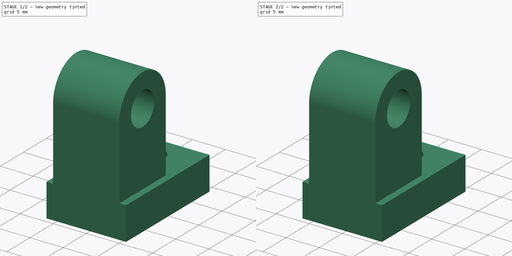
[diagram: build sequence overview — one tinted view per stage of 2, left to right]
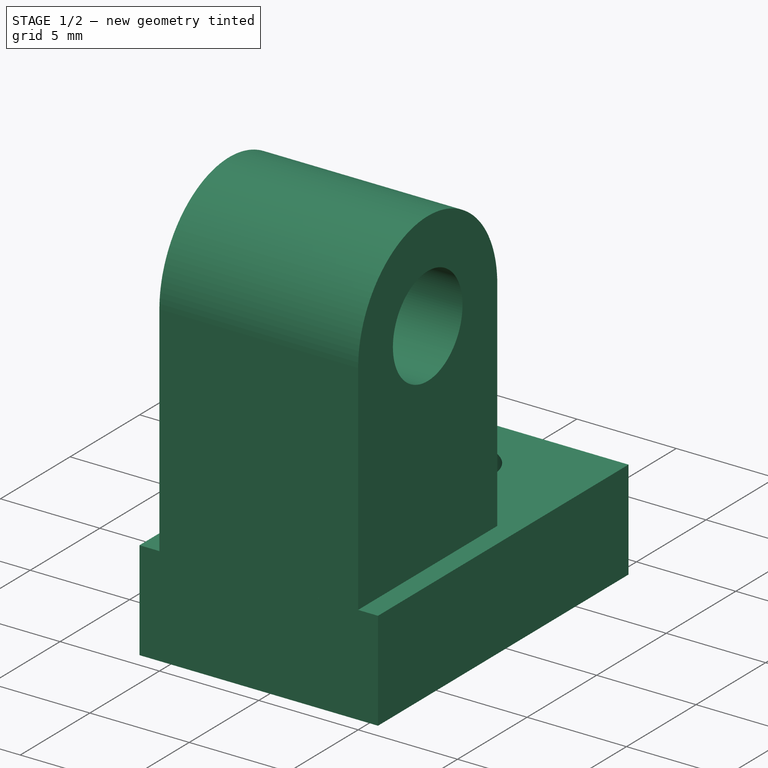
[diagram: stage 1 of 2 — iso view after this stage's code; geometry added in this stage tinted green]
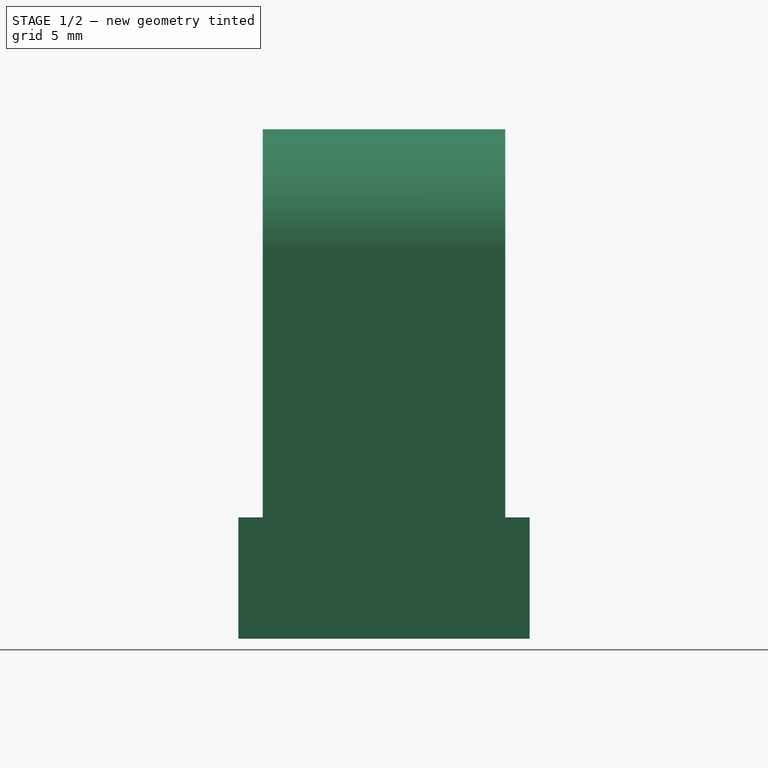
[diagram: stage 1 of 2 — front view after this stage's code; geometry added in this stage tinted green]
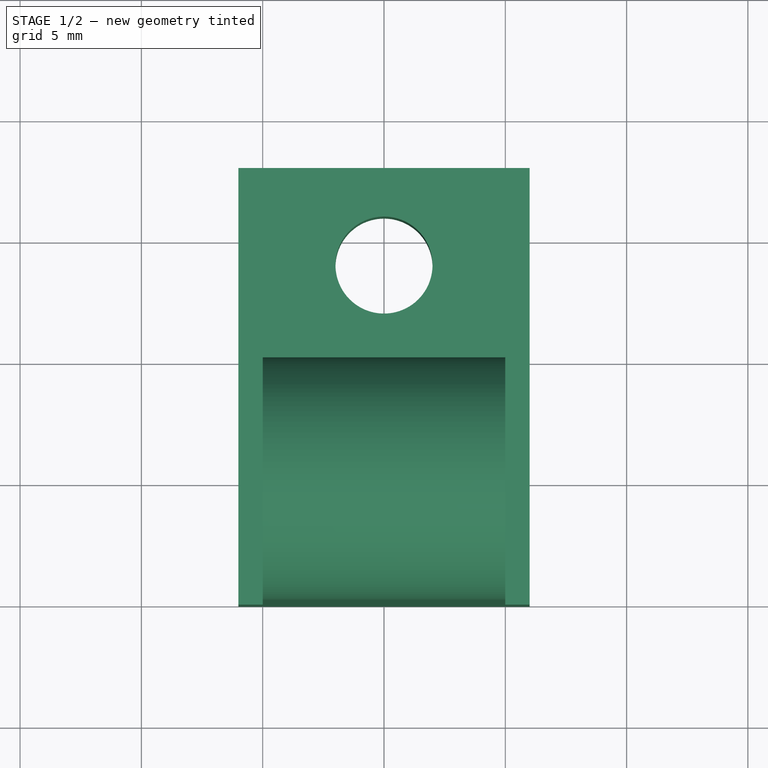
[diagram: stage 1 of 2 — top view after this stage's code; geometry added in this stage tinted green]
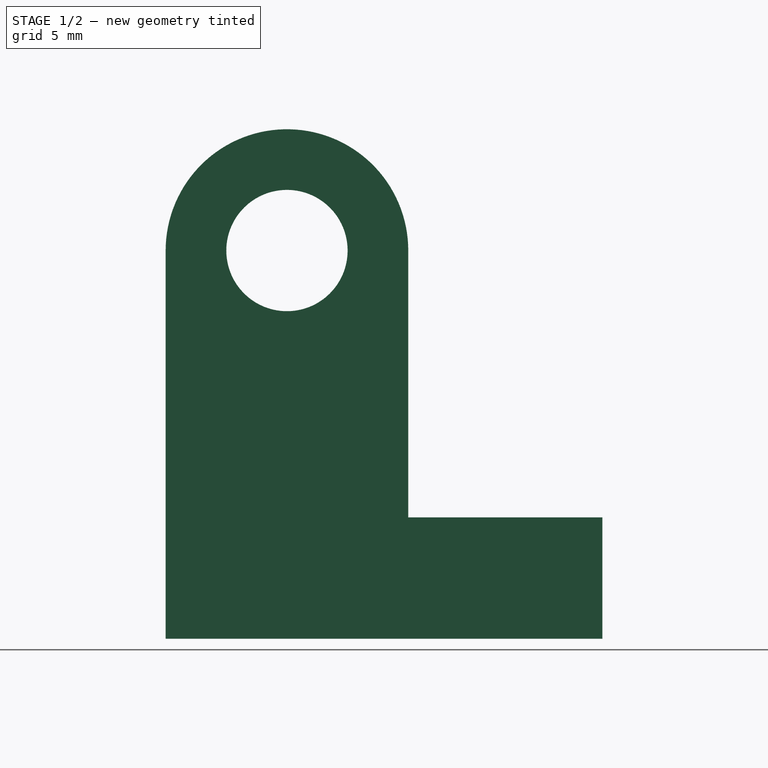
[diagram: stage 1 of 2 — right view after this stage's code; geometry added in this stage tinted green]
FCSTD DOCUMENT  (FreeCAD 0.16R)
Label: Halter
License: All rights reserved
LicenseURL: http://en.wikipedia.org/wiki/All_rights_reserved
objects: Sketcher::SketchObject×2, PartDesign::Pad×2, Part::MultiFuse×1
note: 7 computed .brp shape members not serialized (recipe doc carries the construction recipe); baked Part::Feature solids carry a one-line shape summary decoded from their .brp

FEATURE [Sketcher::SketchObject] Sketch
  sketch-geometry (5):
    g0: LineSegment StartX=-6 StartY=18 StartZ=0 EndX=6 EndY=18 EndZ=0
    g1: LineSegment StartX=6 StartY=18 StartZ=0 EndX=6 EndY=0 EndZ=0
    g2: LineSegment StartX=6 StartY=0 StartZ=0 EndX=-6 EndY=0 EndZ=0
    g3: LineSegment StartX=-6 StartY=0 StartZ=0 EndX=-6 EndY=18 EndZ=0
    g4: Circle CenterX=0 CenterY=14 CenterZ=0 NormalX=0 NormalY=0 NormalZ=1 Radius=2
  constraints (15):
    c: Coincident(g0,g1)
    c: Coincident(g1,g2)
    c: Coincident(g2,g3)
    c: Coincident(g3,g0)
    c: Horizontal(g0)
    c: Horizontal(g2)
    c: Vertical(g1)
    c: Vertical(g3)
    c: PointOnObject(g1,g-1)
    c: Symmetric(g2,g1,g-2)
    c: DistanceX(g2,g2) = 12
    c: DistanceY(g1,g1) = 18
    c: PointOnObject(g4,g-2)
    c: Radius(g4) = 2
    c: DistanceY(g4,g0) = 4
FEATURE [PartDesign::Pad] Pad
  Length = 5
  Length2 = 100
  Sketch = -> Sketch
  Type = 0
FEATURE [Sketcher::SketchObject] Sketch001
  Placement = pos=(0,0,0) rot=(0.57735,0.57735,0.57735;2.0944rad)
  sketch-geometry (6):
    g0: LineSegment StartX=0 StartY=0 StartZ=0 EndX=10 EndY=0 EndZ=0
    g1: LineSegment StartX=10 StartY=0 StartZ=0 EndX=10 EndY=16 EndZ=0
    g2: LineSegment [constr] StartX=10 StartY=16 StartZ=0 EndX=0 EndY=16 EndZ=0
    g3: LineSegment StartX=0 StartY=16 StartZ=0 EndX=0 EndY=0 EndZ=0
    g4: ArcOfCircle CenterX=5 CenterY=16 CenterZ=0 NormalX=0 NormalY=0 NormalZ=1 Radius=5 StartAngle=0 EndAngle=3.14159
    g5: Circle CenterX=5 CenterY=16 CenterZ=0 NormalX=0 NormalY=0 NormalZ=1 Radius=2.5
  constraints (16):
    c: Coincident(g0,g1)
    c: Coincident(g1,g2)
    c: Coincident(g2,g3)
    c: Coincident(g3,g0)
    c: Coincident(g0,g-1)
    c: Distance(g1,g0) = 16
    c: Equal(g2,g0)
    c: Perpendicular(g3,g2)
    c: Distance(g2) = 10
    c: Angle(g-1,g3) = 1.5708
    c: Equal(g3,g1)
    c: PointOnObject(g4,g2)
    c: Coincident(g4,g2)
    c: Coincident(g1,g4)
    c: Coincident(g5,g4)
    c: Radius(g5) = 2.5
FEATURE [PartDesign::Pad] Pad001
  Length = 10
  Length2 = 100
  Midplane = true
  Placement = pos=(0,0,0) rot=(0.57735,0.57735,0.57735;2.0944rad)
  Sketch = -> Sketch001
  Type = 0
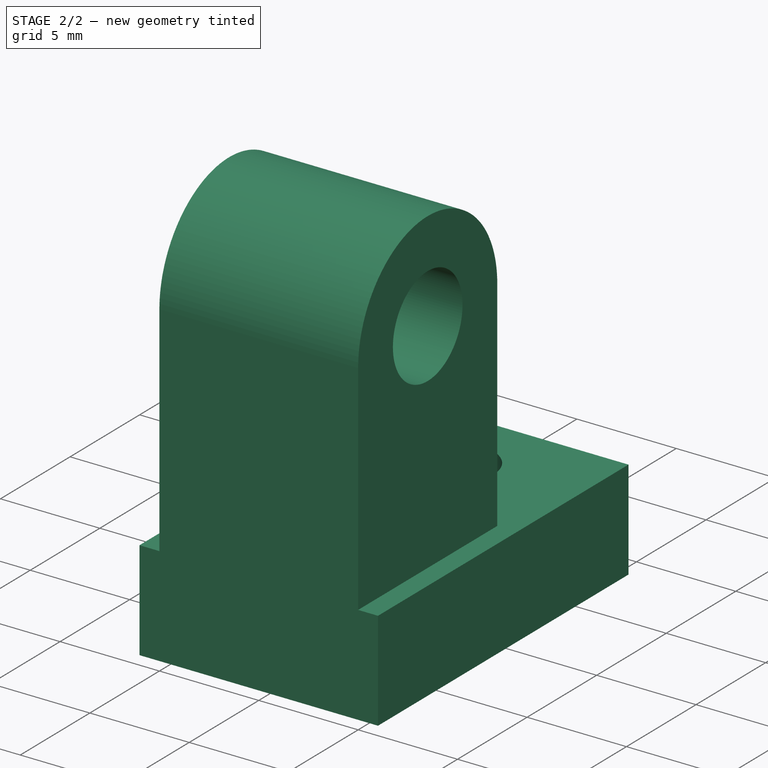
[diagram: stage 2 of 2 — iso view after this stage's code; geometry added in this stage tinted green]
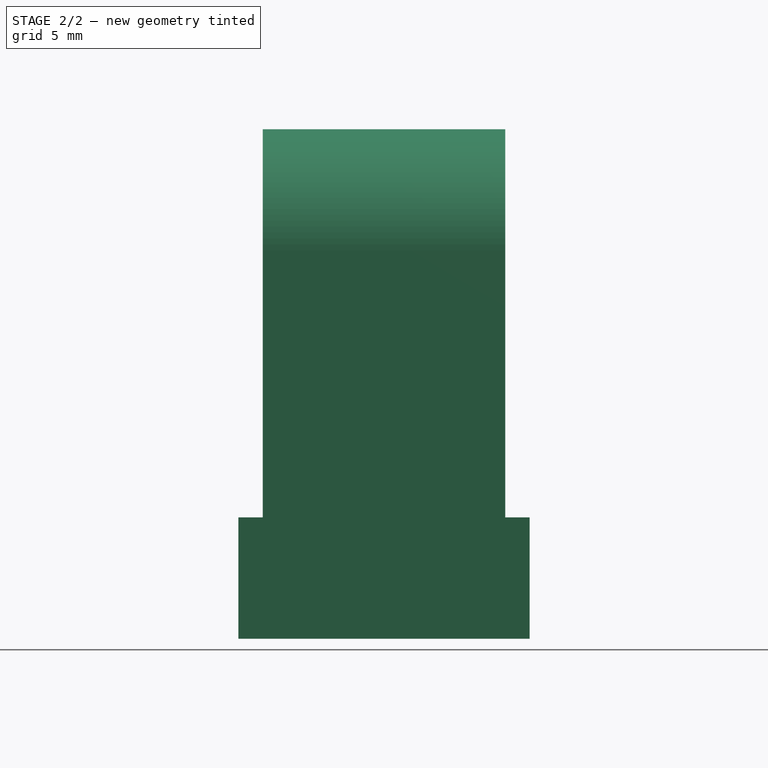
[diagram: stage 2 of 2 — front view after this stage's code; geometry added in this stage tinted green]
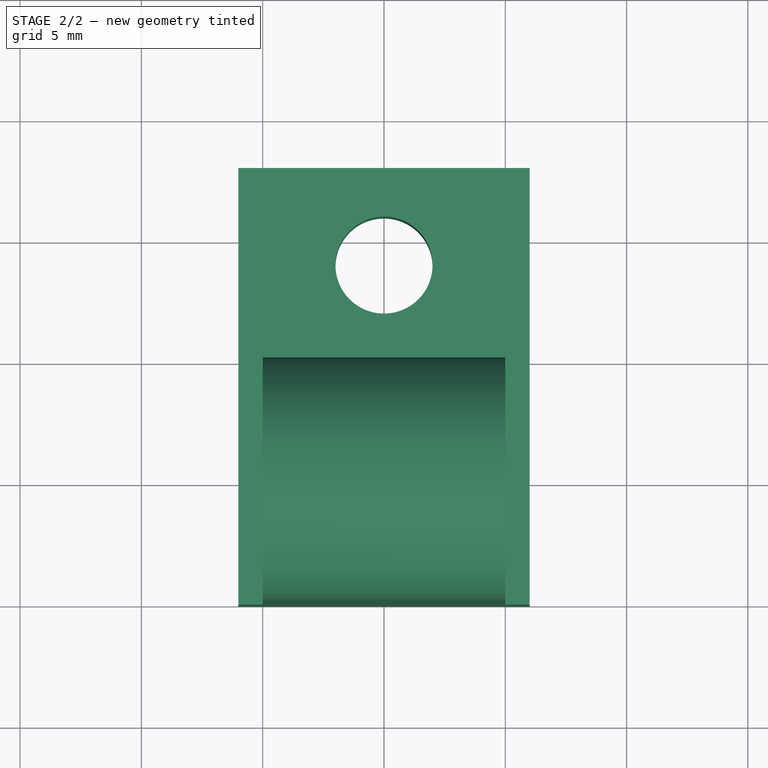
[diagram: stage 2 of 2 — top view after this stage's code; geometry added in this stage tinted green]
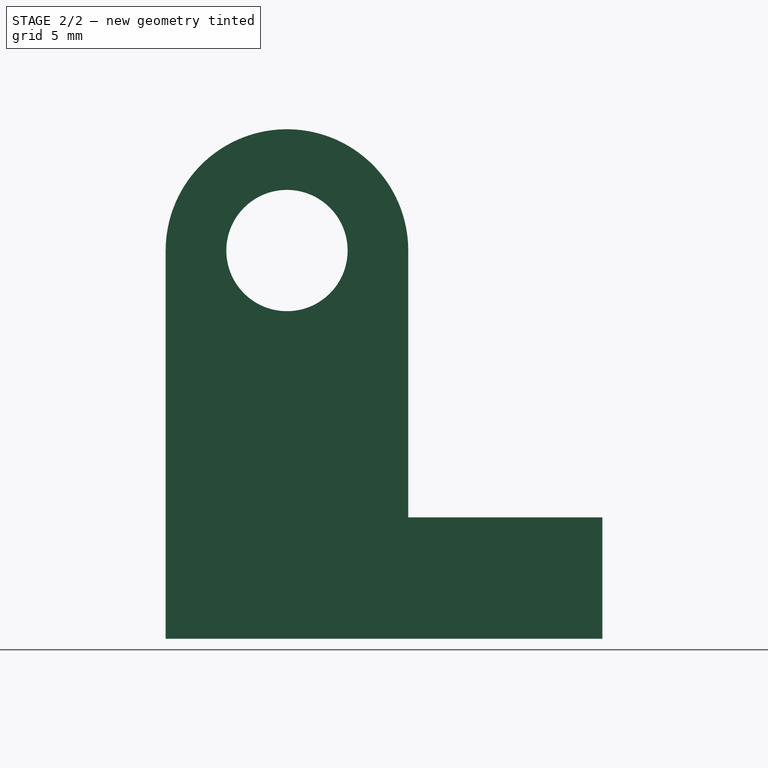
[diagram: stage 2 of 2 — right view after this stage's code; geometry added in this stage tinted green]
FEATURE [Part::MultiFuse] Fusion
  Shapes = -> [Pad,Pad001]
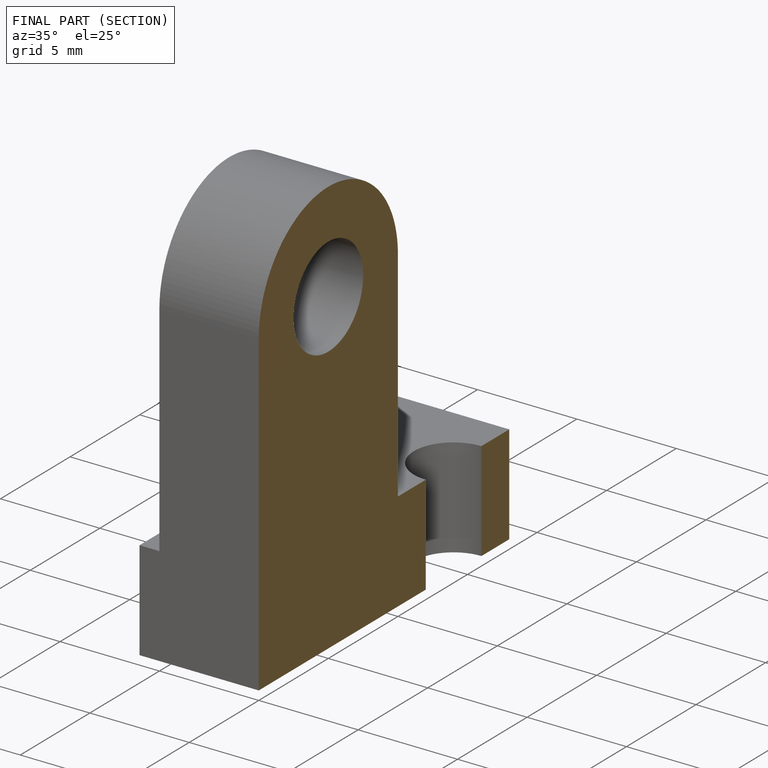
[diagram: finished part — half-section view (interior)]
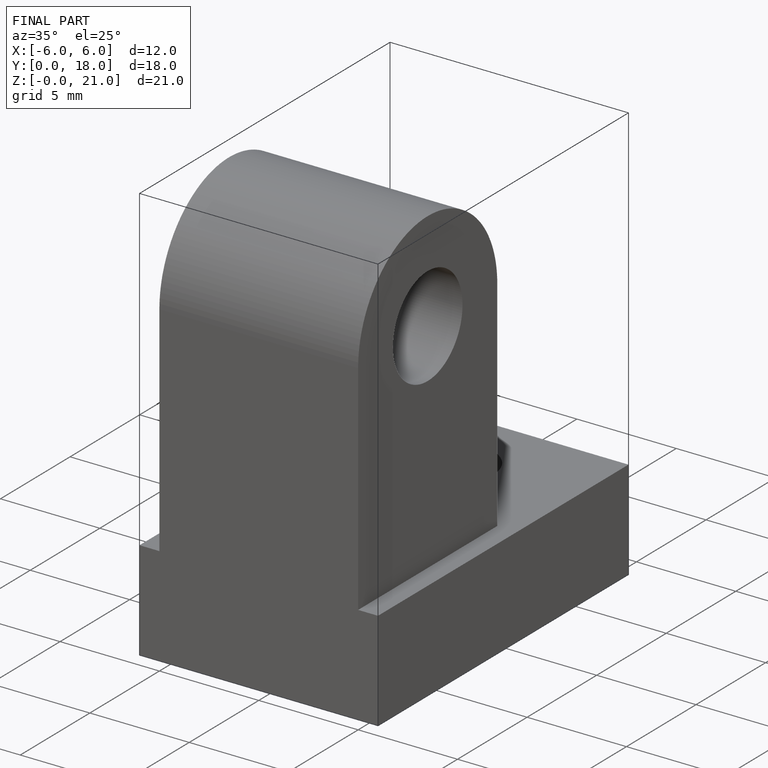
[diagram: finished part — iso view with bounding-box wireframe]
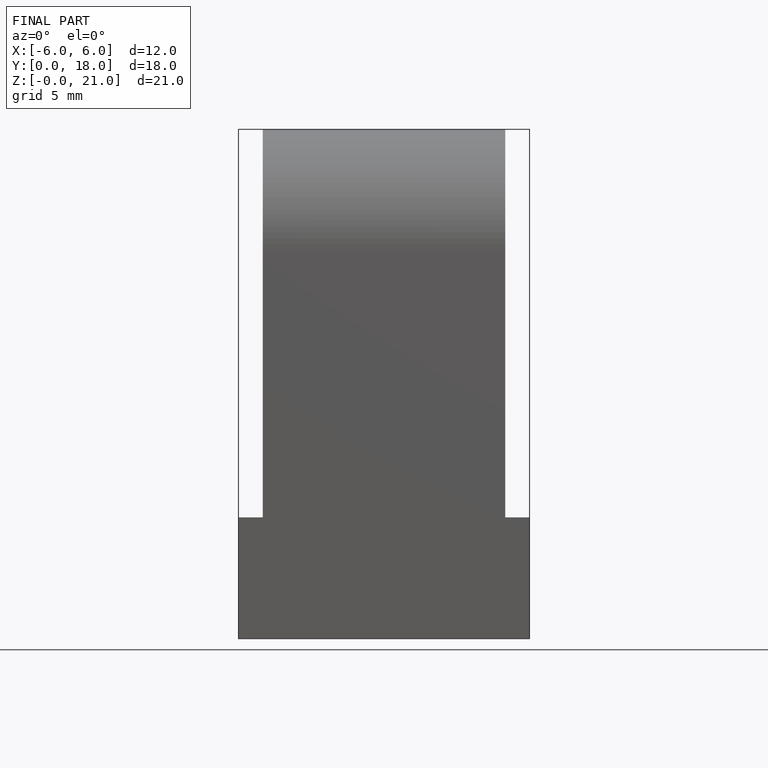
[diagram: finished part — front view with bounding-box wireframe]
